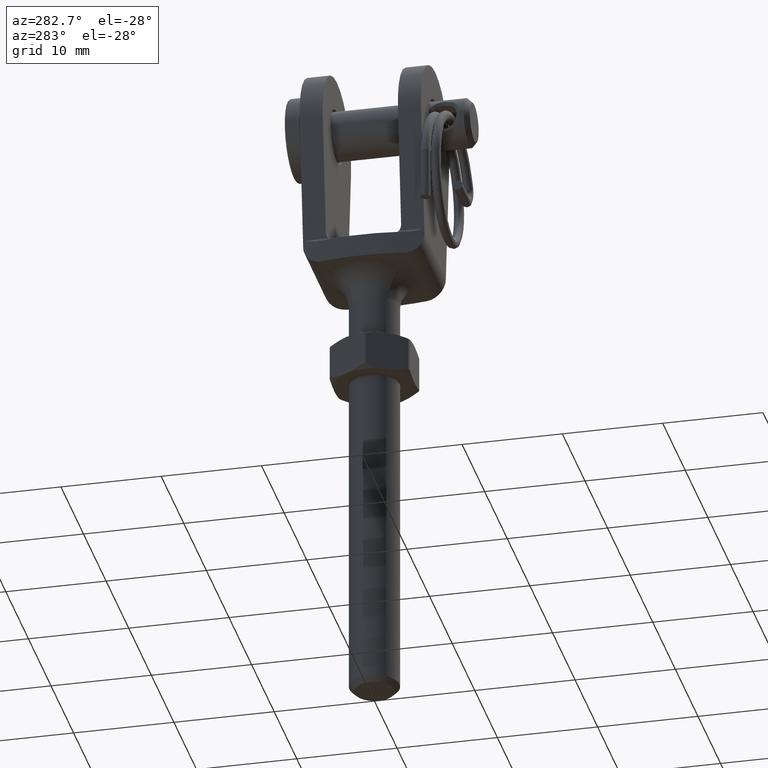
[diagram: clean part render]
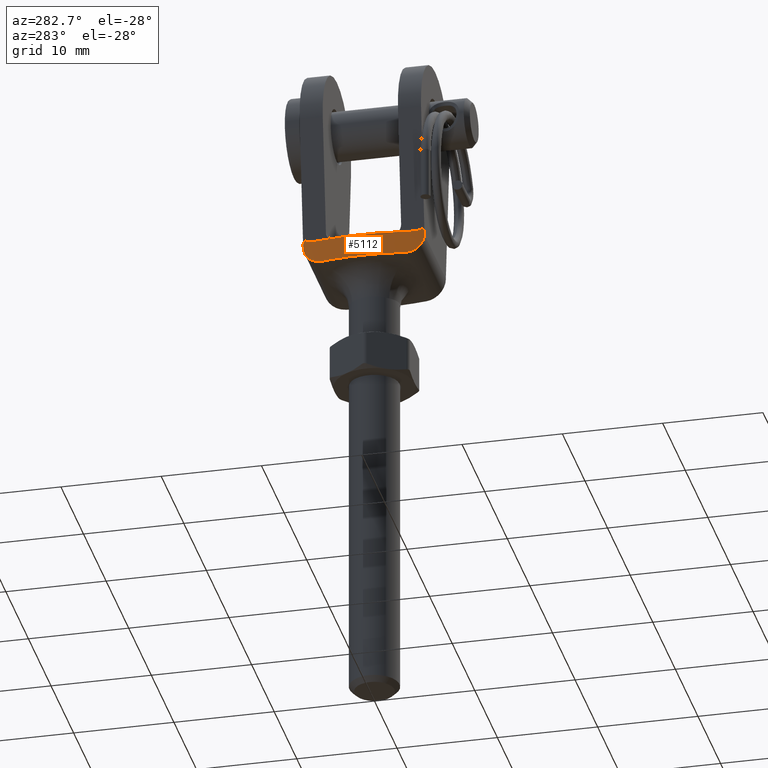
[diagram: same view with one face highlighted and labeled with its STEP entity id]
A machine part, auxiliary view. The second image highlights one B-rep face of the part: STEP entity #5112.
In plain terms, the highlighted cylindrical surface (partial cylindrical patch) has radius 24.7767 mm, axis along (0, 0, 1).
Its self-contained STEP definition (entity closure, byte-faithful):
#54 = CARTESIAN_POINT ( 'NONE',  ( -4.798213622787599775, -5.855200953591688240, 0.4007918547621262539 ) ) ;
#119 =( BOUNDED_CURVE ( )  B_SPLINE_CURVE ( 3, ( #18211, #2723, #13476, #15058 ),
 .UNSPECIFIED., .F., .F. ) 
 B_SPLINE_CURVE_WITH_KNOTS ( ( 4, 4 ),
 ( 0.2380134337601783057, 0.2466754017994476078 ),
 .UNSPECIFIED. ) 
 CURVE ( )  GEOMETRIC_REPRESENTATION_ITEM ( )  RATIONAL_B_SPLINE_CURVE ( ( 1.000000000000000000, 0.9999937475355805683, 0.9999937475355805683, 1.000000000000000000 ) ) 
 REPRESENTATION_ITEM ( '' )  );
#120 = CARTESIAN_POINT ( 'NONE',  ( -4.852209641321610256, -5.629136547824971970, 0.1951503766023074404 ) ) ;
#905 = EDGE_CURVE ( 'NONE', #12358, #1728, #8042, .T. ) ;
#1040 = CARTESIAN_POINT ( 'NONE',  ( -4.750000000000000888, -6.049999999999997158, -2.299999999999999378 ) ) ;
#1202 = CARTESIAN_POINT ( 'NONE',  ( -4.850618871106033403, 5.635863975468359044, -1.525649766480570158 ) ) ;
#1223 = ORIENTED_EDGE ( 'NONE', *, *, #19528, .T. ) ;
#1249 = CARTESIAN_POINT ( 'NONE',  ( -4.784636097588638393, 5.911179082765930737, 0.2998688471587472315 ) ) ;
#1411 = CARTESIAN_POINT ( 'NONE',  ( -4.814277307605262735, 5.788829845395092377, 0.2845254107232784713 ) ) ;
#1649 = CARTESIAN_POINT ( 'NONE',  ( -4.870463359635329503, -5.550522977520709667, -1.628675123187614204 ) ) ;
#1658 = CARTESIAN_POINT ( 'NONE',  ( -4.803791575079070064, -5.832236302635450009, 0.3349574392846181303 ) ) ;
#1687 = AXIS2_PLACEMENT_3D ( 'NONE', #6655, #3410, #12868 ) ;
#1728 = VERTEX_POINT ( 'NONE', #18644 ) ;
#1804 = CARTESIAN_POINT ( 'NONE',  ( -5.077164620631005043, -4.572383852479850574, 0.01005839769375199179 ) ) ;
#2109 = CARTESIAN_POINT ( 'NONE',  ( -4.801502900275446351, 5.841657420346876073, 0.4458965185499665362 ) ) ;
#2382 = VERTEX_POINT ( 'NONE', #12887 ) ;
#2723 = CARTESIAN_POINT ( 'NONE',  ( -4.784636097588638393, -5.911179082765922743, 0.2998688471587460658 ) ) ;
#2968 = AXIS2_PLACEMENT_3D ( 'NONE', #8779, #16585, #19901 ) ;
#2996 = CARTESIAN_POINT ( 'NONE',  ( -5.144943652441872572, -4.181621744726165879, -2.299999999999999822 ) ) ;
#3039 = EDGE_CURVE ( 'NONE', #9382, #13767, #119, .T. ) ;
#3057 = CARTESIAN_POINT ( 'NONE',  ( -5.198861063127290905, -3.851201560448116457, 6.366768560170643608E-16 ) ) ;
#3118 = CARTESIAN_POINT ( 'NONE',  ( -4.816353163173655361, -5.780597836010051616, -1.311069883782621348 ) ) ;
#3186 = CARTESIAN_POINT ( 'NONE',  ( -5.004467842261792754, -4.932018709892342478, -2.099729591687348407 ) ) ;
#3328 = CARTESIAN_POINT ( 'NONE',  ( -4.968505038701250598, -5.107641865548574245, 0.07037563600060139923 ) ) ;
#3410 = DIRECTION ( 'NONE',  ( -1.224646799147353207E-16, 0.000000000000000000, -1.000000000000000000 ) ) ;
#3622 = CARTESIAN_POINT ( 'NONE',  ( -4.750000000000000888, 6.049999999999999822, -2.299999999999999378 ) ) ;
#3757 = DIRECTION ( 'NONE',  ( 1.224646799147353207E-16, -0.000000000000000000, 1.000000000000000000 ) ) ;
#3764 = LINE ( 'NONE', #1040, #8951 ) ;
#3992 = CARTESIAN_POINT ( 'NONE',  ( -5.166751897664939364, -4.049999999999999822, -2.299999999999998934 ) ) ;
#4007 = DIRECTION ( 'NONE',  ( 1.000000000000000000, 0.000000000000000000, -1.224646799147352961E-16 ) ) ;
#4024 = CARTESIAN_POINT ( 'NONE',  ( -4.801502900275446351, -5.841657420346866303, 0.4458965185499661477 ) ) ;
#4034 = DIRECTION ( 'NONE',  ( -1.224646799147353207E-16, 0.000000000000000000, -1.000000000000000000 ) ) ;
#4100 = CARTESIAN_POINT ( 'NONE',  ( 19.27666666666668860, 0.000000000000000000, -2.300000000000002043 ) ) ;
#4124 = VERTEX_POINT ( 'NONE', #7412 ) ;
#4181 = CARTESIAN_POINT ( 'NONE',  ( -5.075379753778952008, 4.573894058875851876, -2.247434339062483577 ) ) ;
#4278 = ORIENTED_EDGE ( 'NONE', *, *, #6679, .F. ) ;
#4386 = CARTESIAN_POINT ( 'NONE',  ( -4.753339612233681066, 6.036780552027156688, -0.5645305578121641021 ) ) ;
#4396 = CARTESIAN_POINT ( 'NONE',  ( -5.141916298314368028, 4.213102423949824704, 6.346394357302843318E-16 ) ) ;
#4487 = EDGE_CURVE ( 'NONE', #4124, #13828, #12729, .T. ) ;
#4750 = VERTEX_POINT ( 'NONE', #13563 ) ;
#4807 = CYLINDRICAL_SURFACE ( 'NONE', #2968, 24.77666666666668505 ) ;
#4816 = EDGE_CURVE ( 'NONE', #17441, #12358, #14203, .T. ) ;
#4907 = CARTESIAN_POINT ( 'NONE',  ( -5.141972646637451128, -4.212744313650370387, 1.550070293475370853E-16 ) ) ;
#5112 = ADVANCED_FACE ( 'NONE', ( #5300 ), #4807, .T. ) ;
#5300 = FACE_OUTER_BOUND ( 'NONE', #7906, .T. ) ;
#5648 = B_SPLINE_CURVE_WITH_KNOTS ( 'NONE', 3,
 ( #5753, #12395, #4386, #6022, #18379, #16813, #15491, #1202, #13709, #12332, #20200, #4181, #18640, #7620 ),
 .UNSPECIFIED., .F., .F.,
 ( 4, 2, 2, 2, 2, 2, 4 ),
 ( 5.421010862427522170E-20, 0.0003945347030260729451, 0.0007890694060521457817, 0.001183604109078218673, 0.001578138812104291563, 0.002367208218156437345, 0.003156277624208583127 ),
 .UNSPECIFIED. ) ;
#5660 = CARTESIAN_POINT ( 'NONE',  ( -5.499999999999998224, 0.000000000000000000, -2.299999999999999378 ) ) ;
#5753 = CARTESIAN_POINT ( 'NONE',  ( -4.750000000000000888, 6.049999999999999822, -0.2999999999999994893 ) ) ;
#5863 = ORIENTED_EDGE ( 'NONE', *, *, #4816, .F. ) ;
#5924 = EDGE_CURVE ( 'NONE', #4750, #1728, #5648, .T. ) ;
#6022 = CARTESIAN_POINT ( 'NONE',  ( -4.766269187833112042, 5.985077835227573750, -0.8222519981203546546 ) ) ;
#6417 = CARTESIAN_POINT ( 'NONE',  ( -4.801024736193805431, -5.843860329138243159, -1.193982711631460969 ) ) ;
#6425 = CARTESIAN_POINT ( 'NONE',  ( -4.824050616469274466, -5.748069007218861159, 0.2584027783198518669 ) ) ;
#6655 = CARTESIAN_POINT ( 'NONE',  ( 19.27666666666668860, 0.000000000000000000, -2.300000000000002043 ) ) ;
#6679 = EDGE_CURVE ( 'NONE', #4750, #20034, #17370, .T. ) ;
#6828 = EDGE_CURVE ( 'NONE', #20034, #13828, #8108, .T. ) ;
#7412 = CARTESIAN_POINT ( 'NONE',  ( -5.198861063127290905, 3.851201560448116457, 6.366768560170643608E-16 ) ) ;
#7557 = CARTESIAN_POINT ( 'NONE',  ( -4.749999999999999112, 6.049999999999999822, 1.518316892814078417E-15 ) ) ;
#7620 = CARTESIAN_POINT ( 'NONE',  ( -5.166751897664939364, 4.049999999999999822, -2.299999999999998934 ) ) ;
#7906 = EDGE_LOOP ( 'NONE', ( #5863, #14173, #9640, #8635, #17035, #1223, #20476, #17494, #4278, #12996, #8045 ) ) ;
#7927 = CARTESIAN_POINT ( 'NONE',  ( -4.801502900275446351, -5.841657420346866303, 0.4458965185499661477 ) ) ;
#7986 = CARTESIAN_POINT ( 'NONE',  ( -4.750000000000000888, -6.049999999999997158, -0.2999999999999994893 ) ) ;
#8042 = CIRCLE ( 'NONE', #1687, 24.77666666666668505 ) ;
#8045 = ORIENTED_EDGE ( 'NONE', *, *, #905, .F. ) ;
#8108 =( BOUNDED_CURVE ( )  B_SPLINE_CURVE ( 3, ( #16994, #9054, #1249, #15809 ),
 .UNSPECIFIED., .F., .F. ) 
 B_SPLINE_CURVE_WITH_KNOTS ( ( 4, 4 ),
 ( 6.036509905380138541, 6.045171873419407760 ),
 .UNSPECIFIED. ) 
 CURVE ( )  GEOMETRIC_REPRESENTATION_ITEM ( )  RATIONAL_B_SPLINE_CURVE ( ( 1.000000000000000000, 0.9999937475355805683, 0.9999937475355805683, 1.000000000000000000 ) ) 
 REPRESENTATION_ITEM ( '' )  );
#8539 = CIRCLE ( 'NONE', #10593, 24.77666666666668505 ) ;
#8635 = ORIENTED_EDGE ( 'NONE', *, *, #3039, .F. ) ;
#8779 = CARTESIAN_POINT ( 'NONE',  ( 19.27666666666668860, 0.000000000000000000, -2.300000000000002043 ) ) ;
#8951 = VECTOR ( 'NONE', #13479, 1000.000000000000000 ) ;
#9054 = CARTESIAN_POINT ( 'NONE',  ( -4.767468356822796238, 5.980627043537880994, 0.1512357449855696867 ) ) ;
#9293 = CARTESIAN_POINT ( 'NONE',  ( -4.799090056163831441, 5.851602691950091639, 0.4250068446986005055 ) ) ;
#9382 = VERTEX_POINT ( 'NONE', #4024 ) ;
#9398 = CARTESIAN_POINT ( 'NONE',  ( -5.076175196997437133, -4.564972997305646985, -2.236897774332500699 ) ) ;
#9514 = EDGE_CURVE ( 'NONE', #2382, #13767, #3764, .T. ) ;
#9531 = CARTESIAN_POINT ( 'NONE',  ( -4.980909951620558829, -5.046328390219009918, -2.039017735274312848 ) ) ;
#9538 = CARTESIAN_POINT ( 'NONE',  ( -4.799065229725430370, -5.851705021674399099, 0.4247919049105146061 ) ) ;
#9640 = ORIENTED_EDGE ( 'NONE', *, *, #9514, .T. ) ;
#9742 = EDGE_CURVE ( 'NONE', #17441, #2382, #14662, .T. ) ;
#10371 = CARTESIAN_POINT ( 'NONE',  ( 19.27666666666668860, 0.000000000000000000, -2.360710813156383852E-15 ) ) ;
#10593 = AXIS2_PLACEMENT_3D ( 'NONE', #10371, #16423, #4007 ) ;
#10695 = CARTESIAN_POINT ( 'NONE',  ( -4.798233693753643614, 5.855118249097780669, 0.4009454689266046534 ) ) ;
#10831 = CARTESIAN_POINT ( 'NONE',  ( -4.871469743623097592, 5.546039473067854608, 0.1681629378992711976 ) ) ;
#10971 = CARTESIAN_POINT ( 'NONE',  ( -4.929983988566618791, 5.287023210589559596, 0.09761098474966459215 ) ) ;
#11126 = CARTESIAN_POINT ( 'NONE',  ( -4.912220473309495183, -5.365625104367305553, -1.811977967367168540 ) ) ;
#11274 = CARTESIAN_POINT ( 'NONE',  ( -4.872242288301933399, -5.542670762341497692, 0.1671023116337992387 ) ) ;
#11584 = CARTESIAN_POINT ( 'NONE',  ( -4.750000000000000888, -6.049999999999997158, 5.817072295949930384E-16 ) ) ;
#12332 = CARTESIAN_POINT ( 'NONE',  ( -4.932819407043092852, 5.274445919294758589, -1.902599884498717753 ) ) ;
#12358 = VERTEX_POINT ( 'NONE', #5660 ) ;
#12395 = CARTESIAN_POINT ( 'NONE',  ( -4.750000000000000000, 6.049999999999998934, -0.4334357263080166889 ) ) ;
#12405 = CARTESIAN_POINT ( 'NONE',  ( -4.823555736556289553, 5.750141737211156290, 0.2597132174605339405 ) ) ;
#12432 = CARTESIAN_POINT ( 'NONE',  ( -4.749999999999998224, -6.050000000000000711, -0.5669713077161990800 ) ) ;
#12463 = CARTESIAN_POINT ( 'NONE',  ( -4.801502900275446351, 5.841657420346876073, 0.4458965185499665362 ) ) ;
#12567 = CARTESIAN_POINT ( 'NONE',  ( -4.851148488251098456, -5.633600244327222839, -1.528593279349044876 ) ) ;
#12711 = CARTESIAN_POINT ( 'NONE',  ( -4.814665011260275129, -5.787218877814876095, 0.2832304230795427702 ) ) ;
#12729 = B_SPLINE_CURVE_WITH_KNOTS ( 'NONE', 3,
 ( #16957, #4396, #14129, #14060, #10971, #10831, #15499, #12405, #1411, #20133, #18723, #10695, #9293, #12463 ),
 .UNSPECIFIED., .F., .F.,
 ( 4, 2, 2, 2, 2, 2, 4 ),
 ( 0.000000000000000000, 0.001098413749784248484, 0.001647620624676371425, 0.001922224062122433004, 0.002059525780845463793, 0.002128176640206979730, 0.002196827499568495667 ),
 .UNSPECIFIED. ) ;
#12746 = VERTEX_POINT ( 'NONE', #3057 ) ;
#12789 = CARTESIAN_POINT ( 'NONE',  ( -4.930562126919207699, -5.284359221510770865, 0.09717940940465985555 ) ) ;
#12856 = CARTESIAN_POINT ( 'NONE',  ( -5.198861063127290905, -3.851201560448116457, 6.366768560170643608E-16 ) ) ;
#12868 = DIRECTION ( 'NONE',  ( 1.000000000000000000, 0.000000000000000000, -1.225252017876796722E-16 ) ) ;
#12887 = CARTESIAN_POINT ( 'NONE',  ( -4.750000000000000888, -6.049999999999997158, -0.2999999999999994893 ) ) ;
#12996 = ORIENTED_EDGE ( 'NONE', *, *, #5924, .T. ) ;
#13476 = CARTESIAN_POINT ( 'NONE',  ( -4.767468356822799791, -5.980627043537872112, 0.1512357449855987190 ) ) ;
#13479 = DIRECTION ( 'NONE',  ( 1.224646799147353207E-16, -0.000000000000000000, 1.000000000000000000 ) ) ;
#13563 = CARTESIAN_POINT ( 'NONE',  ( -4.750000000000000888, 6.049999999999999822, -0.2999999999999994893 ) ) ;
#13709 = CARTESIAN_POINT ( 'NONE',  ( -4.870301159048614714, 5.551225277754658904, -1.627863402311648944 ) ) ;
#13767 = VERTEX_POINT ( 'NONE', #11584 ) ;
#13828 = VERTEX_POINT ( 'NONE', #2109 ) ;
#14060 = CARTESIAN_POINT ( 'NONE',  ( -4.968185175714245894, 5.109158602984628317, 0.07059623498406786268 ) ) ;
#14129 = CARTESIAN_POINT ( 'NONE',  ( -5.076856180024114984, 4.574020286377140643, 0.01014409038614332362 ) ) ;
#14166 = AXIS2_PLACEMENT_3D ( 'NONE', #4100, #4034, #15074 ) ;
#14173 = ORIENTED_EDGE ( 'NONE', *, *, #9742, .T. ) ;
#14203 = CIRCLE ( 'NONE', #14166, 24.77666666666668505 ) ;
#14662 = B_SPLINE_CURVE_WITH_KNOTS ( 'NONE', 3,
 ( #15868, #2996, #19036, #9398, #18967, #3186, #9531, #20440, #11126, #1649, #12567, #3118, #6417, #17444, #12432, #7986 ),
 .UNSPECIFIED., .F., .F.,
 ( 4, 2, 2, 2, 2, 2, 2, 4 ),
 ( 0.000000000000000000, 0.0003945367806077995556, 0.0007890735612155991112, 0.001183610341823398667, 0.001578147122431198439, 0.001972683903038998428, 0.002367220683646798201, 0.003156294244862397746 ),
 .UNSPECIFIED. ) ;
#15058 = CARTESIAN_POINT ( 'NONE',  ( -4.750000000000000888, -6.049999999999997158, 5.817072295949930384E-16 ) ) ;
#15074 = DIRECTION ( 'NONE',  ( 1.000000000000000000, 0.000000000000000000, -1.225252017876796722E-16 ) ) ;
#15491 = CARTESIAN_POINT ( 'NONE',  ( -4.815951224066791880, 5.782268874957987137, -1.308179767508736324 ) ) ;
#15499 = CARTESIAN_POINT ( 'NONE',  ( -4.851547531780197708, 5.631966423181427928, 0.1962570517181440044 ) ) ;
#15809 = CARTESIAN_POINT ( 'NONE',  ( -4.801502900275446351, 5.841657420346876073, 0.4458965185499665362 ) ) ;
#15868 = CARTESIAN_POINT ( 'NONE',  ( -5.166751897664939364, -4.049999999999999822, -2.299999999999998934 ) ) ;
#15877 = CARTESIAN_POINT ( 'NONE',  ( -4.800714504907668712, -5.844908474665128750, 0.3552974646962904215 ) ) ;
#16423 = DIRECTION ( 'NONE',  ( -1.224646799147353207E-16, 0.000000000000000000, -1.000000000000000000 ) ) ;
#16585 = DIRECTION ( 'NONE',  ( 1.224646799147353207E-16, -0.000000000000000000, 1.000000000000000000 ) ) ;
#16813 = CARTESIAN_POINT ( 'NONE',  ( -4.800911171834462365, 5.844329830614891641, -1.193145260700009258 ) ) ;
#16957 = CARTESIAN_POINT ( 'NONE',  ( -5.198861063127290905, 3.851201560448116457, 6.366768560170643608E-16 ) ) ;
#16994 = CARTESIAN_POINT ( 'NONE',  ( -4.749999999999999112, 6.049999999999999822, 1.518316892814078417E-15 ) ) ;
#17035 = ORIENTED_EDGE ( 'NONE', *, *, #19377, .T. ) ;
#17370 = LINE ( 'NONE', #3622, #18857 ) ;
#17441 = VERTEX_POINT ( 'NONE', #3992 ) ;
#17444 = CARTESIAN_POINT ( 'NONE',  ( -4.763831268657202855, -5.995709552653646135, -0.8317651862617493341 ) ) ;
#17494 = ORIENTED_EDGE ( 'NONE', *, *, #6828, .F. ) ;
#17803 = B_SPLINE_CURVE_WITH_KNOTS ( 'NONE', 3,
 ( #7927, #9538, #54, #15877, #1658, #12711, #6425, #120, #11274, #12789, #3328, #1804, #4907, #12856 ),
 .UNSPECIFIED., .F., .F.,
 ( 4, 2, 2, 2, 2, 2, 4 ),
 ( 0.000000000000000000, 6.955009430994237973E-05, 0.0001391001886198847595, 0.0002782003772397690852, 0.0005564007544795377368, 0.001112801508959075040, 0.002225603017918149646 ),
 .UNSPECIFIED. ) ;
#18211 = CARTESIAN_POINT ( 'NONE',  ( -4.801502900275446351, -5.841657420346866303, 0.4458965185499661477 ) ) ;
#18379 = CARTESIAN_POINT ( 'NONE',  ( -4.776026670472364621, 5.945913636073386854, -0.9502610877919205334 ) ) ;
#18640 = CARTESIAN_POINT ( 'NONE',  ( -5.123152901195670239, 4.313137906094612894, -2.299999999999998934 ) ) ;
#18644 = CARTESIAN_POINT ( 'NONE',  ( -5.166751897664939364, 4.049999999999999822, -2.299999999999998934 ) ) ;
#18723 = CARTESIAN_POINT ( 'NONE',  ( -4.800639944813160476, 5.845215429038828958, 0.3561465630607567601 ) ) ;
#18857 = VECTOR ( 'NONE', #3757, 1000.000000000000000 ) ;
#18967 = CARTESIAN_POINT ( 'NONE',  ( -5.052179055111523098, -4.691009213518947618, -2.198970983448427230 ) ) ;
#19036 = CARTESIAN_POINT ( 'NONE',  ( -5.122433556367002261, -4.310892437665218679, -2.287134950660689281 ) ) ;
#19377 = EDGE_CURVE ( 'NONE', #9382, #12746, #17803, .T. ) ;
#19528 = EDGE_CURVE ( 'NONE', #12746, #4124, #8539, .T. ) ;
#19901 = DIRECTION ( 'NONE',  ( 1.000000000000000000, 0.000000000000000000, -1.225252017876796722E-16 ) ) ;
#20034 = VERTEX_POINT ( 'NONE', #7557 ) ;
#20133 = CARTESIAN_POINT ( 'NONE',  ( -4.803584775367975901, 5.833089400937871538, 0.3362315298886830450 ) ) ;
#20200 = CARTESIAN_POINT ( 'NONE',  ( -4.980641322997080067, 5.052294609378339629, -2.049963144153689409 ) ) ;
#20440 = CARTESIAN_POINT ( 'NONE',  ( -4.934872289413234192, -5.262778257938560245, -1.895625846439733975 ) ) ;
#20476 = ORIENTED_EDGE ( 'NONE', *, *, #4487, .T. ) ;